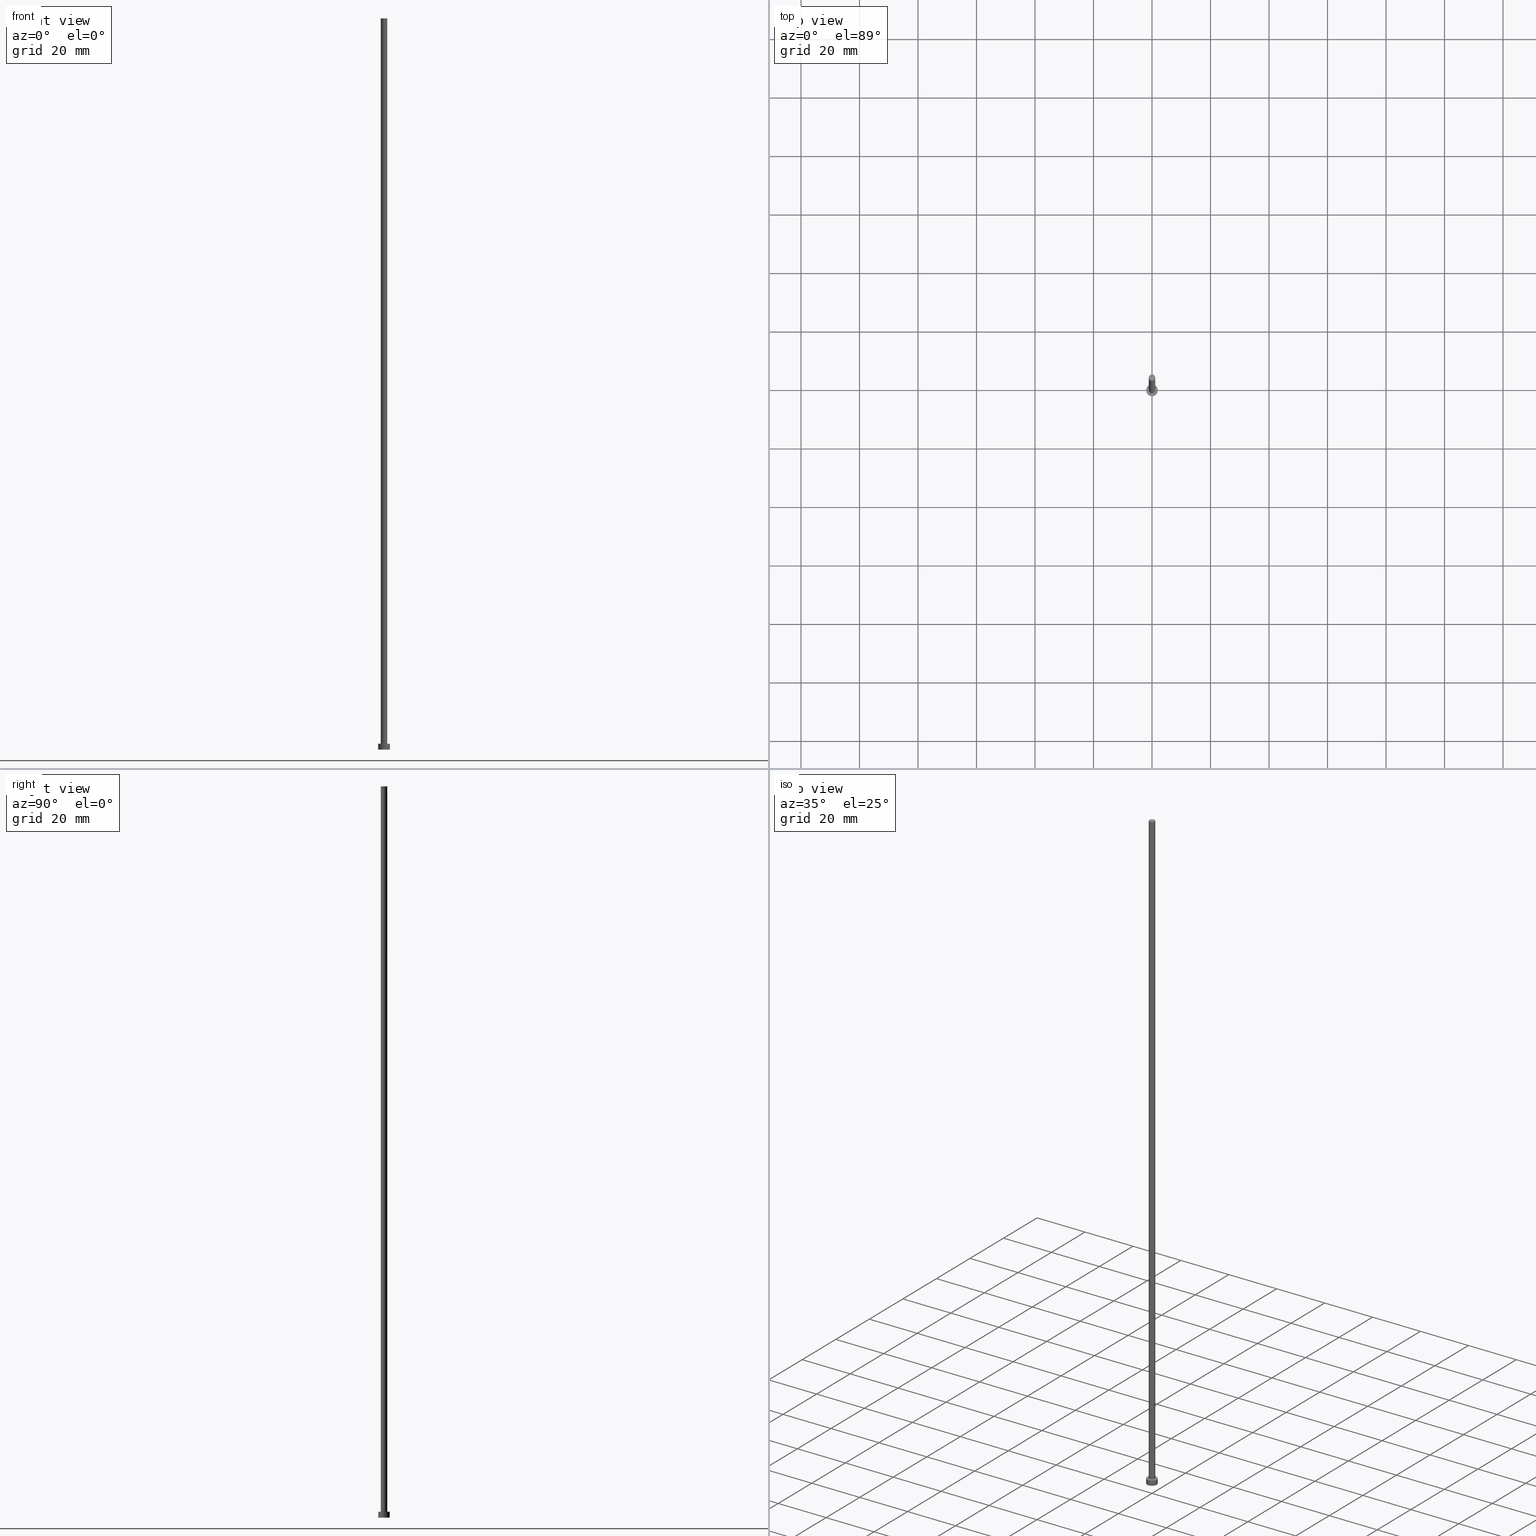
[diagram: canonical four-view strip — front | top / right | iso, engineering-drawing reading convention]
A machine part, canonical four-view strip (front | top / right | iso — engineering-drawing reading convention). The complete STEP part file that produces these views, byte-faithful:
ISO-10303-21;
HEADER;
FILE_DESCRIPTION (( 'STEP AP203' ),
    '1' );
FILE_NAME ('ba49.STEP',
    '2023-02-12T12:50:22',
    ( '' ),
    ( '' ),
    'SwSTEP 2.0',
    'SolidWorks 2019',
    '' );
FILE_SCHEMA (( 'CONFIG_CONTROL_DESIGN' ));
ENDSEC;

DATA;
#1 = DIRECTION ( 'NONE',  ( -1.000000000000000000, 0.000000000000000000, 0.000000000000000000 ) ) ;
#2 = CARTESIAN_POINT ( 'NONE',  ( 0.000000000000000000, 0.000000000000000000, 250.0000000000000000 ) ) ;
#3 = CARTESIAN_POINT ( 'NONE',  ( 0.000000000000000000, 0.000000000000000000, 2.000000000000000000 ) ) ;
#4 = CIRCLE ( 'NONE', #55, 1.100000000000000089 ) ;
#5 = DIRECTION ( 'NONE',  ( -1.000000000000000000, 0.000000000000000000, 0.000000000000000000 ) ) ;
#6 = CARTESIAN_POINT ( 'NONE',  ( 0.000000000000000000, 0.000000000000000000, 250.0000000000000000 ) ) ;
#7 = ADVANCED_FACE ( 'NONE', ( #77 ), #217, .F. ) ;
#8 = CALENDAR_DATE ( 2023, 12, 2 ) ;
#9 = PERSON_AND_ORGANIZATION_ROLE ( 'creator' ) ;
#10 = ORIENTED_EDGE ( 'NONE', *, *, #228, .T. ) ;
#11 = EDGE_CURVE ( 'NONE', #140, #254, #97, .T. ) ;
#12 = ORIENTED_EDGE ( 'NONE', *, *, #108, .T. ) ;
#13 = ORIENTED_EDGE ( 'NONE', *, *, #145, .T. ) ;
#14 = ORIENTED_EDGE ( 'NONE', *, *, #83, .T. ) ;
#15 = ORIENTED_EDGE ( 'NONE', *, *, #83, .F. ) ;
#16 = CARTESIAN_POINT ( 'NONE',  ( -1.100000000000000089, 0.000000000000000000, 2.000000000000000000 ) ) ;
#17 = EDGE_CURVE ( 'NONE', #100, #144, #229, .T. ) ;
#18 = CC_DESIGN_APPROVAL ( #123, ( #69 ) ) ;
#19 = DIRECTION ( 'NONE',  ( 1.000000000000000000, 0.000000000000000000, 0.000000000000000000 ) ) ;
#20 = DIRECTION ( 'NONE',  ( -0.000000000000000000, -0.000000000000000000, -1.000000000000000000 ) ) ;
#21 = CARTESIAN_POINT ( 'NONE',  ( 2.000000000000000000, 2.449293598294706414E-16, 2.000000000000000000 ) ) ;
#22 = ADVANCED_FACE ( 'NONE', ( #176 ), #239, .T. ) ;
#23 = CARTESIAN_POINT ( 'NONE',  ( 1.100000000000000089, 1.347111479062088503E-16, 250.0000000000000000 ) ) ;
#24 = DIRECTION ( 'NONE',  ( 1.000000000000000000, 0.000000000000000000, 0.000000000000000000 ) ) ;
#25 = DATE_AND_TIME ( #8, #215 ) ;
#26 = APPROVAL_STATUS ( 'not_yet_approved' ) ;
#27 = AXIS2_PLACEMENT_3D ( 'NONE', #203, #185, #5 ) ;
#28 = DATE_AND_TIME ( #192, #60 ) ;
#29 = CALENDAR_DATE ( 2023, 12, 2 ) ;
#30 = CARTESIAN_POINT ( 'NONE',  ( 0.000000000000000000, 0.000000000000000000, 0.000000000000000000 ) ) ;
#31 = VECTOR ( 'NONE', #236, 1000.000000000000000 ) ;
#32 = EDGE_LOOP ( 'NONE', ( #143, #255, #240, #56 ) ) ;
#33 = UNCERTAINTY_MEASURE_WITH_UNIT (LENGTH_MEASURE( 1.000000000000000082E-05 ), #209, 'distance_accuracy_value', 'NONE');
#34 = CC_DESIGN_PERSON_AND_ORGANIZATION_ASSIGNMENT ( #208, #110, ( #59 ) ) ;
#35 = EDGE_LOOP ( 'NONE', ( #196, #114, #13, #194 ) ) ;
#36 = CIRCLE ( 'NONE', #220, 2.000000000000000000 ) ;
#37 = EDGE_LOOP ( 'NONE', ( #162, #156 ) ) ;
#38 = CARTESIAN_POINT ( 'NONE',  ( 0.000000000000000000, 0.000000000000000000, 2.000000000000000000 ) ) ;
#39 = DIRECTION ( 'NONE',  ( 1.000000000000000000, 0.000000000000000000, 0.000000000000000000 ) ) ;
#40 = MANIFOLD_SOLID_BREP ( 'P�idat vysunut�m3', #152 ) ;
#41 = DIRECTION ( 'NONE',  ( 1.000000000000000000, 0.000000000000000000, 0.000000000000000000 ) ) ;
#42 = DIRECTION ( 'NONE',  ( -0.000000000000000000, -0.000000000000000000, -1.000000000000000000 ) ) ;
#43 = CARTESIAN_POINT ( 'NONE',  ( 0.000000000000000000, 0.000000000000000000, 0.000000000000000000 ) ) ;
#44 = APPROVAL_PERSON_ORGANIZATION ( #134, #123, #191 ) ;
#45 = DATE_TIME_ROLE ( 'creation_date' ) ;
#46 = ADVANCED_FACE ( 'NONE', ( #244, #121 ), #221, .T. ) ;
#47 = PERSON_AND_ORGANIZATION_ROLE ( 'design_supplier' ) ;
#48 = PERSON_AND_ORGANIZATION ( #177, #49 ) ;
#49 = ORGANIZATION ( 'NEUR�EN�', 'NEUR�EN�', '' ) ;
#50 = APPLICATION_CONTEXT ( 'configuration controlled 3d designs of mechanical parts and assemblies' ) ;
#51 = APPROVAL_STATUS ( 'not_yet_approved' ) ;
#52 = ADVANCED_FACE ( 'NONE', ( #226 ), #150, .T. ) ;
#53 = ADVANCED_BREP_SHAPE_REPRESENTATION ( 'ba49', ( #40, #186 ), #88 ) ;
#54 = ORIENTED_EDGE ( 'NONE', *, *, #232, .F. ) ;
#55 = AXIS2_PLACEMENT_3D ( 'NONE', #122, #199, #19 ) ;
#56 = ORIENTED_EDGE ( 'NONE', *, *, #17, .T. ) ;
#57 = CIRCLE ( 'NONE', #202, 1.100000000000000089 ) ;
#58 = ORIENTED_EDGE ( 'NONE', *, *, #145, .F. ) ;
#59 = SECURITY_CLASSIFICATION ( '', '', #71 ) ;
#60 = LOCAL_TIME ( 13, 50, 22.00000000000000000, #249 ) ;
#61 = ORIENTED_EDGE ( 'NONE', *, *, #11, .T. ) ;
#62 = ADVANCED_FACE ( 'NONE', ( #247 ), #147, .T. ) ;
#63 = LINE ( 'NONE', #245, #113 ) ;
#64 = DIRECTION ( 'NONE',  ( -1.000000000000000000, 0.000000000000000000, 0.000000000000000000 ) ) ;
#65 = CARTESIAN_POINT ( 'NONE',  ( 0.000000000000000000, 0.000000000000000000, 2.000000000000000000 ) ) ;
#66 = ADVANCED_FACE ( 'NONE', ( #197 ), #164, .T. ) ;
#67 = DIRECTION ( 'NONE',  ( 1.000000000000000000, 0.000000000000000000, 0.000000000000000000 ) ) ;
#68 = DIRECTION ( 'NONE',  ( 0.000000000000000000, 0.000000000000000000, 1.000000000000000000 ) ) ;
#69 = PRODUCT_DEFINITION ( 'NEZN�M�', '', #157, #253 ) ;
#70 = PERSON_AND_ORGANIZATION_ROLE ( 'design_owner' ) ;
#71 = SECURITY_CLASSIFICATION_LEVEL ( 'unclassified' ) ;
#72 = AXIS2_PLACEMENT_3D ( 'NONE', #43, #68, #41 ) ;
#73 = DIRECTION ( 'NONE',  ( 1.000000000000000000, 0.000000000000000000, 0.000000000000000000 ) ) ;
#74 = CC_DESIGN_APPROVAL ( #99, ( #157 ) ) ;
#75 = PRODUCT ( 'ba49', 'ba49', '', ( #188 ) ) ;
#76 = CC_DESIGN_DATE_AND_TIME_ASSIGNMENT ( #87, #45, ( #69 ) ) ;
#77 = FACE_OUTER_BOUND ( 'NONE', #178, .T. ) ;
#78 = EDGE_LOOP ( 'NONE', ( #251, #58 ) ) ;
#79 = ORIENTED_EDGE ( 'NONE', *, *, #232, .T. ) ;
#80 = APPROVAL_PERSON_ORGANIZATION ( #230, #201, #137 ) ;
#81 = DIRECTION ( 'NONE',  ( 1.000000000000000000, 0.000000000000000000, 0.000000000000000000 ) ) ;
#82 = LINE ( 'NONE', #85, #136 ) ;
#83 = EDGE_CURVE ( 'NONE', #118, #254, #116, .T. ) ;
#84 = DIRECTION ( 'NONE',  ( -0.000000000000000000, -0.000000000000000000, -1.000000000000000000 ) ) ;
#85 = CARTESIAN_POINT ( 'NONE',  ( 1.100000000000000089, 1.347111479062088503E-16, 250.0000000000000000 ) ) ;
#86 = DIRECTION ( 'NONE',  ( 1.000000000000000000, 0.000000000000000000, -0.000000000000000000 ) ) ;
#87 = DATE_AND_TIME ( #29, #235 ) ;
#88 =( GEOMETRIC_REPRESENTATION_CONTEXT ( 3 ) GLOBAL_UNCERTAINTY_ASSIGNED_CONTEXT ( ( #33 ) ) GLOBAL_UNIT_ASSIGNED_CONTEXT ( ( #209, #131, #172 ) ) REPRESENTATION_CONTEXT ( 'NONE', 'WORKASPACE' ) );
#89 = PERSON_AND_ORGANIZATION ( #177, #49 ) ;
#90 = COORDINATED_UNIVERSAL_TIME_OFFSET ( 1, 0, .AHEAD. ) ;
#91 = CC_DESIGN_SECURITY_CLASSIFICATION ( #59, ( #157 ) ) ;
#92 = CARTESIAN_POINT ( 'NONE',  ( 2.000000000000000000, 2.449293598294706414E-16, 0.000000000000000000 ) ) ;
#93 = ORIENTED_EDGE ( 'NONE', *, *, #180, .T. ) ;
#94 = AXIS2_PLACEMENT_3D ( 'NONE', #30, #95, #96 ) ;
#95 = DIRECTION ( 'NONE',  ( 0.000000000000000000, 0.000000000000000000, 1.000000000000000000 ) ) ;
#96 = DIRECTION ( 'NONE',  ( 1.000000000000000000, 0.000000000000000000, -0.000000000000000000 ) ) ;
#97 = LINE ( 'NONE', #158, #31 ) ;
#98 = DATE_AND_TIME ( #214, #105 ) ;
#99 = APPROVAL ( #51, 'NEUR�EN�' ) ;
#100 = VERTEX_POINT ( 'NONE', #16 ) ;
#101 = CARTESIAN_POINT ( 'NONE',  ( -2.000000000000000000, 0.000000000000000000, 2.000000000000000000 ) ) ;
#102 = CARTESIAN_POINT ( 'NONE',  ( 0.000000000000000000, 0.000000000000000000, 0.000000000000000000 ) ) ;
#103 = CARTESIAN_POINT ( 'NONE',  ( -2.000000000000000000, 0.000000000000000000, 0.000000000000000000 ) ) ;
#104 = FACE_OUTER_BOUND ( 'NONE', #32, .T. ) ;
#105 = LOCAL_TIME ( 13, 50, 22.00000000000000000, #193 ) ;
#106 = CARTESIAN_POINT ( 'NONE',  ( 1.100000000000000089, 1.347111479062088503E-16, 2.000000000000000000 ) ) ;
#107 = PERSON_AND_ORGANIZATION_ROLE ( 'creator' ) ;
#108 = EDGE_CURVE ( 'NONE', #115, #118, #124, .T. ) ;
#109 = DATE_TIME_ROLE ( 'classification_date' ) ;
#110 = PERSON_AND_ORGANIZATION_ROLE ( 'classification_officer' ) ;
#111 = APPROVAL_DATE_TIME ( #28, #123 ) ;
#112 = DIRECTION ( 'NONE',  ( 0.000000000000000000, 0.000000000000000000, 1.000000000000000000 ) ) ;
#113 = VECTOR ( 'NONE', #146, 1000.000000000000000 ) ;
#114 = ORIENTED_EDGE ( 'NONE', *, *, #212, .T. ) ;
#115 = VERTEX_POINT ( 'NONE', #101 ) ;
#116 = CIRCLE ( 'NONE', #72, 2.000000000000000000 ) ;
#117 = ORIENTED_EDGE ( 'NONE', *, *, #155, .F. ) ;
#118 = VERTEX_POINT ( 'NONE', #103 ) ;
#119 = CIRCLE ( 'NONE', #128, 2.000000000000000000 ) ;
#120 = VERTEX_POINT ( 'NONE', #179 ) ;
#121 = FACE_OUTER_BOUND ( 'NONE', #37, .T. ) ;
#122 = CARTESIAN_POINT ( 'NONE',  ( 0.000000000000000000, 0.000000000000000000, 250.0000000000000000 ) ) ;
#123 = APPROVAL ( #211, 'NEUR�EN�' ) ;
#124 = LINE ( 'NONE', #127, #170 ) ;
#125 = AXIS2_PLACEMENT_3D ( 'NONE', #200, #149, #86 ) ;
#126 = DIRECTION ( 'NONE',  ( 0.000000000000000000, 0.000000000000000000, 1.000000000000000000 ) ) ;
#127 = CARTESIAN_POINT ( 'NONE',  ( -2.000000000000000000, 0.000000000000000000, 2.000000000000000000 ) ) ;
#128 = AXIS2_PLACEMENT_3D ( 'NONE', #222, #165, #39 ) ;
#129 = CALENDAR_DATE ( 2023, 12, 2 ) ;
#130 = APPLICATION_CONTEXT ( 'configuration controlled 3d designs of mechanical parts and assemblies' ) ;
#131 =( NAMED_UNIT ( * ) PLANE_ANGLE_UNIT ( ) SI_UNIT ( $, .RADIAN. ) );
#132 = DIRECTION ( 'NONE',  ( 0.000000000000000000, 0.000000000000000000, 1.000000000000000000 ) ) ;
#133 = CC_DESIGN_PERSON_AND_ORGANIZATION_ASSIGNMENT ( #169, #47, ( #157 ) ) ;
#134 = PERSON_AND_ORGANIZATION ( #177, #49 ) ;
#135 = APPROVAL_ROLE ( '' ) ;
#136 = VECTOR ( 'NONE', #167, 1000.000000000000000 ) ;
#137 = APPROVAL_ROLE ( '' ) ;
#138 = VERTEX_POINT ( 'NONE', #23 ) ;
#139 = PRODUCT_DEFINITION_SHAPE ( 'NONE', 'NONE',  #69 ) ;
#140 = VERTEX_POINT ( 'NONE', #21 ) ;
#141 = AXIS2_PLACEMENT_3D ( 'NONE', #175, #252, #159 ) ;
#142 = PRODUCT_RELATED_PRODUCT_CATEGORY ( 'detail', '', ( #75 ) ) ;
#143 = ORIENTED_EDGE ( 'NONE', *, *, #212, .F. ) ;
#144 = VERTEX_POINT ( 'NONE', #106 ) ;
#145 = EDGE_CURVE ( 'NONE', #144, #100, #57, .T. ) ;
#146 = DIRECTION ( 'NONE',  ( -0.000000000000000000, -0.000000000000000000, -1.000000000000000000 ) ) ;
#147 = CYLINDRICAL_SURFACE ( 'NONE', #182, 2.000000000000000000 ) ;
#148 = CIRCLE ( 'NONE', #210, 1.100000000000000089 ) ;
#149 = DIRECTION ( 'NONE',  ( 0.000000000000000000, 0.000000000000000000, 1.000000000000000000 ) ) ;
#150 = CYLINDRICAL_SURFACE ( 'NONE', #246, 2.000000000000000000 ) ;
#151 = COORDINATED_UNIVERSAL_TIME_OFFSET ( 1, 0, .AHEAD. ) ;
#152 = CLOSED_SHELL ( 'NONE', ( #66, #62, #52, #46, #7, #195, #22 ) ) ;
#153 = COORDINATED_UNIVERSAL_TIME_OFFSET ( 1, 0, .AHEAD. ) ;
#154 = AXIS2_PLACEMENT_3D ( 'NONE', #6, #42, #64 ) ;
#155 = EDGE_CURVE ( 'NONE', #140, #115, #190, .T. ) ;
#156 = ORIENTED_EDGE ( 'NONE', *, *, #155, .T. ) ;
#157 = PRODUCT_DEFINITION_FORMATION_WITH_SPECIFIED_SOURCE ( 'LIBOVOLN�', '', #75, .NOT_KNOWN. ) ;
#158 = CARTESIAN_POINT ( 'NONE',  ( 2.000000000000000000, 2.449293598294706414E-16, 2.000000000000000000 ) ) ;
#159 = DIRECTION ( 'NONE',  ( 1.000000000000000000, 0.000000000000000000, 0.000000000000000000 ) ) ;
#160 = AXIS2_PLACEMENT_3D ( 'NONE', #38, #183, #204 ) ;
#161 = SHAPE_DEFINITION_REPRESENTATION ( #139, #53 ) ;
#162 = ORIENTED_EDGE ( 'NONE', *, *, #224, .T. ) ;
#163 = EDGE_LOOP ( 'NONE', ( #93, #10 ) ) ;
#164 = CYLINDRICAL_SURFACE ( 'NONE', #154, 1.100000000000000089 ) ;
#165 = DIRECTION ( 'NONE',  ( 0.000000000000000000, 0.000000000000000000, 1.000000000000000000 ) ) ;
#166 = DIRECTION ( 'NONE',  ( 0.000000000000000000, 0.000000000000000000, 1.000000000000000000 ) ) ;
#167 = DIRECTION ( 'NONE',  ( -0.000000000000000000, -0.000000000000000000, -1.000000000000000000 ) ) ;
#168 = DIRECTION ( 'NONE',  ( -0.000000000000000000, -0.000000000000000000, -1.000000000000000000 ) ) ;
#169 = PERSON_AND_ORGANIZATION ( #177, #49 ) ;
#170 = VECTOR ( 'NONE', #20, 1000.000000000000000 ) ;
#171 = CARTESIAN_POINT ( 'NONE',  ( 0.000000000000000000, 0.000000000000000000, 0.000000000000000000 ) ) ;
#172 =( NAMED_UNIT ( * ) SI_UNIT ( $, .STERADIAN. ) SOLID_ANGLE_UNIT ( ) );
#173 = ORIENTED_EDGE ( 'NONE', *, *, #108, .F. ) ;
#174 = CC_DESIGN_PERSON_AND_ORGANIZATION_ASSIGNMENT ( #189, #107, ( #157 ) ) ;
#175 = CARTESIAN_POINT ( 'NONE',  ( 0.000000000000000000, 0.000000000000000000, 2.000000000000000000 ) ) ;
#176 = FACE_OUTER_BOUND ( 'NONE', #163, .T. ) ;
#177 = PERSON ( 'NEUR�EN�', 'NEUR�EN�', 'NEUR�EN�', ('NEUR�EN�'), ('NEUR�EN�'), ('NEUR�EN�') ) ;
#178 = EDGE_LOOP ( 'NONE', ( #15, #54 ) ) ;
#179 = CARTESIAN_POINT ( 'NONE',  ( -1.100000000000000089, 0.000000000000000000, 250.0000000000000000 ) ) ;
#180 = EDGE_CURVE ( 'NONE', #120, #138, #148, .T. ) ;
#181 = CYLINDRICAL_SURFACE ( 'NONE', #27, 1.100000000000000089 ) ;
#182 = AXIS2_PLACEMENT_3D ( 'NONE', #3, #84, #223 ) ;
#183 = DIRECTION ( 'NONE',  ( 0.000000000000000000, 0.000000000000000000, 1.000000000000000000 ) ) ;
#184 = CC_DESIGN_PERSON_AND_ORGANIZATION_ASSIGNMENT ( #233, #9, ( #69 ) ) ;
#185 = DIRECTION ( 'NONE',  ( -0.000000000000000000, -0.000000000000000000, -1.000000000000000000 ) ) ;
#186 = AXIS2_PLACEMENT_3D ( 'NONE', #171, #132, #73 ) ;
#187 = CARTESIAN_POINT ( 'NONE',  ( 0.000000000000000000, 0.000000000000000000, 2.000000000000000000 ) ) ;
#188 = MECHANICAL_CONTEXT ( 'NONE', #130, 'mechanical' ) ;
#189 = PERSON_AND_ORGANIZATION ( #177, #49 ) ;
#190 = CIRCLE ( 'NONE', #238, 2.000000000000000000 ) ;
#191 = APPROVAL_ROLE ( '' ) ;
#192 = CALENDAR_DATE ( 2023, 12, 2 ) ;
#193 = COORDINATED_UNIVERSAL_TIME_OFFSET ( 1, 0, .AHEAD. ) ;
#194 = ORIENTED_EDGE ( 'NONE', *, *, #216, .F. ) ;
#195 = ADVANCED_FACE ( 'NONE', ( #104 ), #181, .T. ) ;
#196 = ORIENTED_EDGE ( 'NONE', *, *, #228, .F. ) ;
#197 = FACE_OUTER_BOUND ( 'NONE', #35, .T. ) ;
#198 = LOCAL_TIME ( 13, 50, 22.00000000000000000, #151 ) ;
#199 = DIRECTION ( 'NONE',  ( 0.000000000000000000, 0.000000000000000000, 1.000000000000000000 ) ) ;
#200 = CARTESIAN_POINT ( 'NONE',  ( 0.000000000000000000, 0.000000000000000000, 250.0000000000000000 ) ) ;
#201 = APPROVAL ( #26, 'NEUR�EN�' ) ;
#202 = AXIS2_PLACEMENT_3D ( 'NONE', #187, #166, #81 ) ;
#203 = CARTESIAN_POINT ( 'NONE',  ( 0.000000000000000000, 0.000000000000000000, 250.0000000000000000 ) ) ;
#204 = DIRECTION ( 'NONE',  ( 1.000000000000000000, 0.000000000000000000, -0.000000000000000000 ) ) ;
#205 = APPROVAL_PERSON_ORGANIZATION ( #89, #99, #135 ) ;
#206 = CC_DESIGN_PERSON_AND_ORGANIZATION_ASSIGNMENT ( #48, #70, ( #75 ) ) ;
#207 = APPROVAL_DATE_TIME ( #213, #99 ) ;
#208 = PERSON_AND_ORGANIZATION ( #177, #49 ) ;
#209 =( LENGTH_UNIT ( ) NAMED_UNIT ( * ) SI_UNIT ( .MILLI., .METRE. ) );
#210 = AXIS2_PLACEMENT_3D ( 'NONE', #2, #126, #67 ) ;
#211 = APPROVAL_STATUS ( 'not_yet_approved' ) ;
#212 = EDGE_CURVE ( 'NONE', #138, #144, #82, .T. ) ;
#213 = DATE_AND_TIME ( #129, #198 ) ;
#214 = CALENDAR_DATE ( 2023, 12, 2 ) ;
#215 = LOCAL_TIME ( 13, 50, 22.00000000000000000, #153 ) ;
#216 = EDGE_CURVE ( 'NONE', #120, #100, #63, .T. ) ;
#217 = PLANE ( 'NONE',  #94 ) ;
#218 = ORIENTED_EDGE ( 'NONE', *, *, #224, .F. ) ;
#219 = ORIENTED_EDGE ( 'NONE', *, *, #11, .F. ) ;
#220 = AXIS2_PLACEMENT_3D ( 'NONE', #102, #112, #24 ) ;
#221 = PLANE ( 'NONE',  #160 ) ;
#222 = CARTESIAN_POINT ( 'NONE',  ( 0.000000000000000000, 0.000000000000000000, 2.000000000000000000 ) ) ;
#223 = DIRECTION ( 'NONE',  ( -1.000000000000000000, 0.000000000000000000, 0.000000000000000000 ) ) ;
#224 = EDGE_CURVE ( 'NONE', #115, #140, #119, .T. ) ;
#225 = DIRECTION ( 'NONE',  ( 0.000000000000000000, 0.000000000000000000, 1.000000000000000000 ) ) ;
#226 = FACE_OUTER_BOUND ( 'NONE', #234, .T. ) ;
#227 = APPLICATION_PROTOCOL_DEFINITION ( 'international standard', 'config_control_design', 1994, #130 ) ;
#228 = EDGE_CURVE ( 'NONE', #138, #120, #4, .T. ) ;
#229 = CIRCLE ( 'NONE', #141, 1.100000000000000089 ) ;
#230 = PERSON_AND_ORGANIZATION ( #177, #49 ) ;
#231 = APPLICATION_PROTOCOL_DEFINITION ( 'international standard', 'config_control_design', 1994, #50 ) ;
#232 = EDGE_CURVE ( 'NONE', #254, #118, #36, .T. ) ;
#233 = PERSON_AND_ORGANIZATION ( #177, #49 ) ;
#234 = EDGE_LOOP ( 'NONE', ( #219, #218, #12, #14 ) ) ;
#235 = LOCAL_TIME ( 13, 50, 22.00000000000000000, #90 ) ;
#236 = DIRECTION ( 'NONE',  ( -0.000000000000000000, -0.000000000000000000, -1.000000000000000000 ) ) ;
#237 = APPROVAL_DATE_TIME ( #98, #201 ) ;
#238 = AXIS2_PLACEMENT_3D ( 'NONE', #65, #225, #241 ) ;
#239 = PLANE ( 'NONE',  #125 ) ;
#240 = ORIENTED_EDGE ( 'NONE', *, *, #216, .T. ) ;
#241 = DIRECTION ( 'NONE',  ( 1.000000000000000000, 0.000000000000000000, 0.000000000000000000 ) ) ;
#242 = CARTESIAN_POINT ( 'NONE',  ( 0.000000000000000000, 0.000000000000000000, 2.000000000000000000 ) ) ;
#243 = CC_DESIGN_APPROVAL ( #201, ( #59 ) ) ;
#244 = FACE_BOUND ( 'NONE', #78, .T. ) ;
#245 = CARTESIAN_POINT ( 'NONE',  ( -1.100000000000000089, 0.000000000000000000, 250.0000000000000000 ) ) ;
#246 = AXIS2_PLACEMENT_3D ( 'NONE', #242, #168, #1 ) ;
#247 = FACE_OUTER_BOUND ( 'NONE', #250, .T. ) ;
#248 = CC_DESIGN_DATE_AND_TIME_ASSIGNMENT ( #25, #109, ( #59 ) ) ;
#249 = COORDINATED_UNIVERSAL_TIME_OFFSET ( 1, 0, .AHEAD. ) ;
#250 = EDGE_LOOP ( 'NONE', ( #117, #61, #79, #173 ) ) ;
#251 = ORIENTED_EDGE ( 'NONE', *, *, #17, .F. ) ;
#252 = DIRECTION ( 'NONE',  ( 0.000000000000000000, 0.000000000000000000, 1.000000000000000000 ) ) ;
#253 = DESIGN_CONTEXT ( 'detailed design', #50, 'design' ) ;
#254 = VERTEX_POINT ( 'NONE', #92 ) ;
#255 = ORIENTED_EDGE ( 'NONE', *, *, #180, .F. ) ;
ENDSEC;
END-ISO-10303-21;
